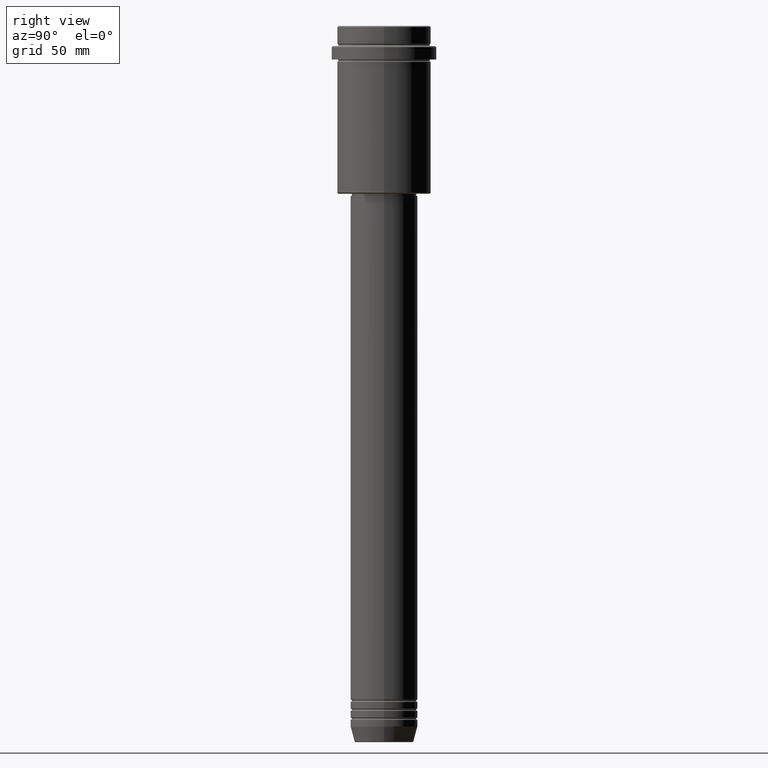
[diagram: clean part render]
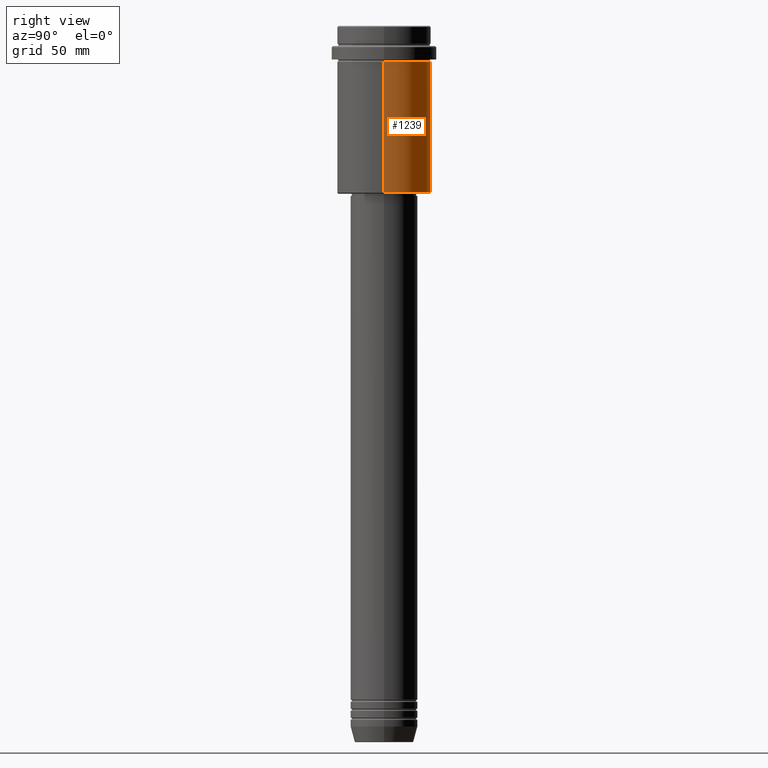
[diagram: same view with one face highlighted and labeled with its STEP entity id]
A machine part, right view. The second image highlights one B-rep face of the part: STEP entity #1239.
In plain terms, the highlighted cylindrical surface (partial cylindrical patch) has radius 21 mm, axis along (-0, -0, 1).
Its self-contained STEP definition (entity closure, byte-faithful):
#72 = DIRECTION ( 'NONE',  ( -0.000000000000000000, -0.000000000000000000, 1.000000000000000000 ) ) ;
#111 = ORIENTED_EDGE ( 'NONE', *, *, #772, .T. ) ;
#150 = DIRECTION ( 'NONE',  ( -1.000000000000000000, 0.000000000000000000, 0.000000000000000000 ) ) ;
#167 = CARTESIAN_POINT ( 'NONE',  ( 0.000000000000000000, 0.000000000000000000, 0.000000000000000000 ) ) ;
#204 = CARTESIAN_POINT ( 'NONE',  ( 0.000000000000000000, 0.000000000000000000, -16.00000000000000355 ) ) ;
#280 = VERTEX_POINT ( 'NONE', #518 ) ;
#486 = DIRECTION ( 'NONE',  ( -0.000000000000000000, -0.000000000000000000, 1.000000000000000000 ) ) ;
#499 = VERTEX_POINT ( 'NONE', #984 ) ;
#507 = FACE_OUTER_BOUND ( 'NONE', #1102, .T. ) ;
#518 = CARTESIAN_POINT ( 'NONE',  ( -21.00000000000000000, 2.571758278209441661E-15, -74.50000000000002842 ) ) ;
#610 = CARTESIAN_POINT ( 'NONE',  ( -21.00000000000000000, 2.571758278209441661E-15, 0.000000000000000000 ) ) ;
#618 = AXIS2_PLACEMENT_3D ( 'NONE', #167, #72, #948 ) ;
#622 = ORIENTED_EDGE ( 'NONE', *, *, #1377, .F. ) ;
#648 = DIRECTION ( 'NONE',  ( -0.000000000000000000, -0.000000000000000000, 1.000000000000000000 ) ) ;
#685 = VERTEX_POINT ( 'NONE', #1202 ) ;
#705 = CARTESIAN_POINT ( 'NONE',  ( 21.00000000000000000, 0.000000000000000000, 0.000000000000000000 ) ) ;
#772 = EDGE_CURVE ( 'NONE', #280, #685, #1378, .T. ) ;
#809 = VECTOR ( 'NONE', #1044, 1000.000000000000000 ) ;
#885 = VERTEX_POINT ( 'NONE', #890 ) ;
#890 = CARTESIAN_POINT ( 'NONE',  ( 21.00000000000000000, 0.000000000000000000, -16.00000000000000355 ) ) ;
#948 = DIRECTION ( 'NONE',  ( 1.000000000000000000, 0.000000000000000000, 0.000000000000000000 ) ) ;
#982 = AXIS2_PLACEMENT_3D ( 'NONE', #1335, #1132, #150 ) ;
#984 = CARTESIAN_POINT ( 'NONE',  ( 21.00000000000000000, 0.000000000000000000, -74.50000000000002842 ) ) ;
#991 = ORIENTED_EDGE ( 'NONE', *, *, #1085, .F. ) ;
#1026 = VECTOR ( 'NONE', #486, 1000.000000000000000 ) ;
#1044 = DIRECTION ( 'NONE',  ( -0.000000000000000000, -0.000000000000000000, 1.000000000000000000 ) ) ;
#1058 = CYLINDRICAL_SURFACE ( 'NONE', #618, 21.00000000000000000 ) ;
#1078 = DIRECTION ( 'NONE',  ( 1.000000000000000000, 0.000000000000000000, 0.000000000000000000 ) ) ;
#1085 = EDGE_CURVE ( 'NONE', #499, #885, #1213, .T. ) ;
#1102 = EDGE_LOOP ( 'NONE', ( #1342, #111, #622, #991 ) ) ;
#1106 = EDGE_CURVE ( 'NONE', #499, #280, #1201, .T. ) ;
#1120 = CIRCLE ( 'NONE', #1273, 21.00000000000000000 ) ;
#1132 = DIRECTION ( 'NONE',  ( -0.000000000000000000, -0.000000000000000000, 1.000000000000000000 ) ) ;
#1201 = CIRCLE ( 'NONE', #982, 21.00000000000000000 ) ;
#1202 = CARTESIAN_POINT ( 'NONE',  ( -21.00000000000000000, 2.571758278209441661E-15, -16.00000000000000355 ) ) ;
#1213 = LINE ( 'NONE', #705, #1026 ) ;
#1239 = ADVANCED_FACE ( 'NONE', ( #507 ), #1058, .T. ) ;
#1273 = AXIS2_PLACEMENT_3D ( 'NONE', #204, #648, #1078 ) ;
#1335 = CARTESIAN_POINT ( 'NONE',  ( 0.000000000000000000, 0.000000000000000000, -74.50000000000002842 ) ) ;
#1342 = ORIENTED_EDGE ( 'NONE', *, *, #1106, .T. ) ;
#1377 = EDGE_CURVE ( 'NONE', #885, #685, #1120, .T. ) ;
#1378 = LINE ( 'NONE', #610, #809 ) ;